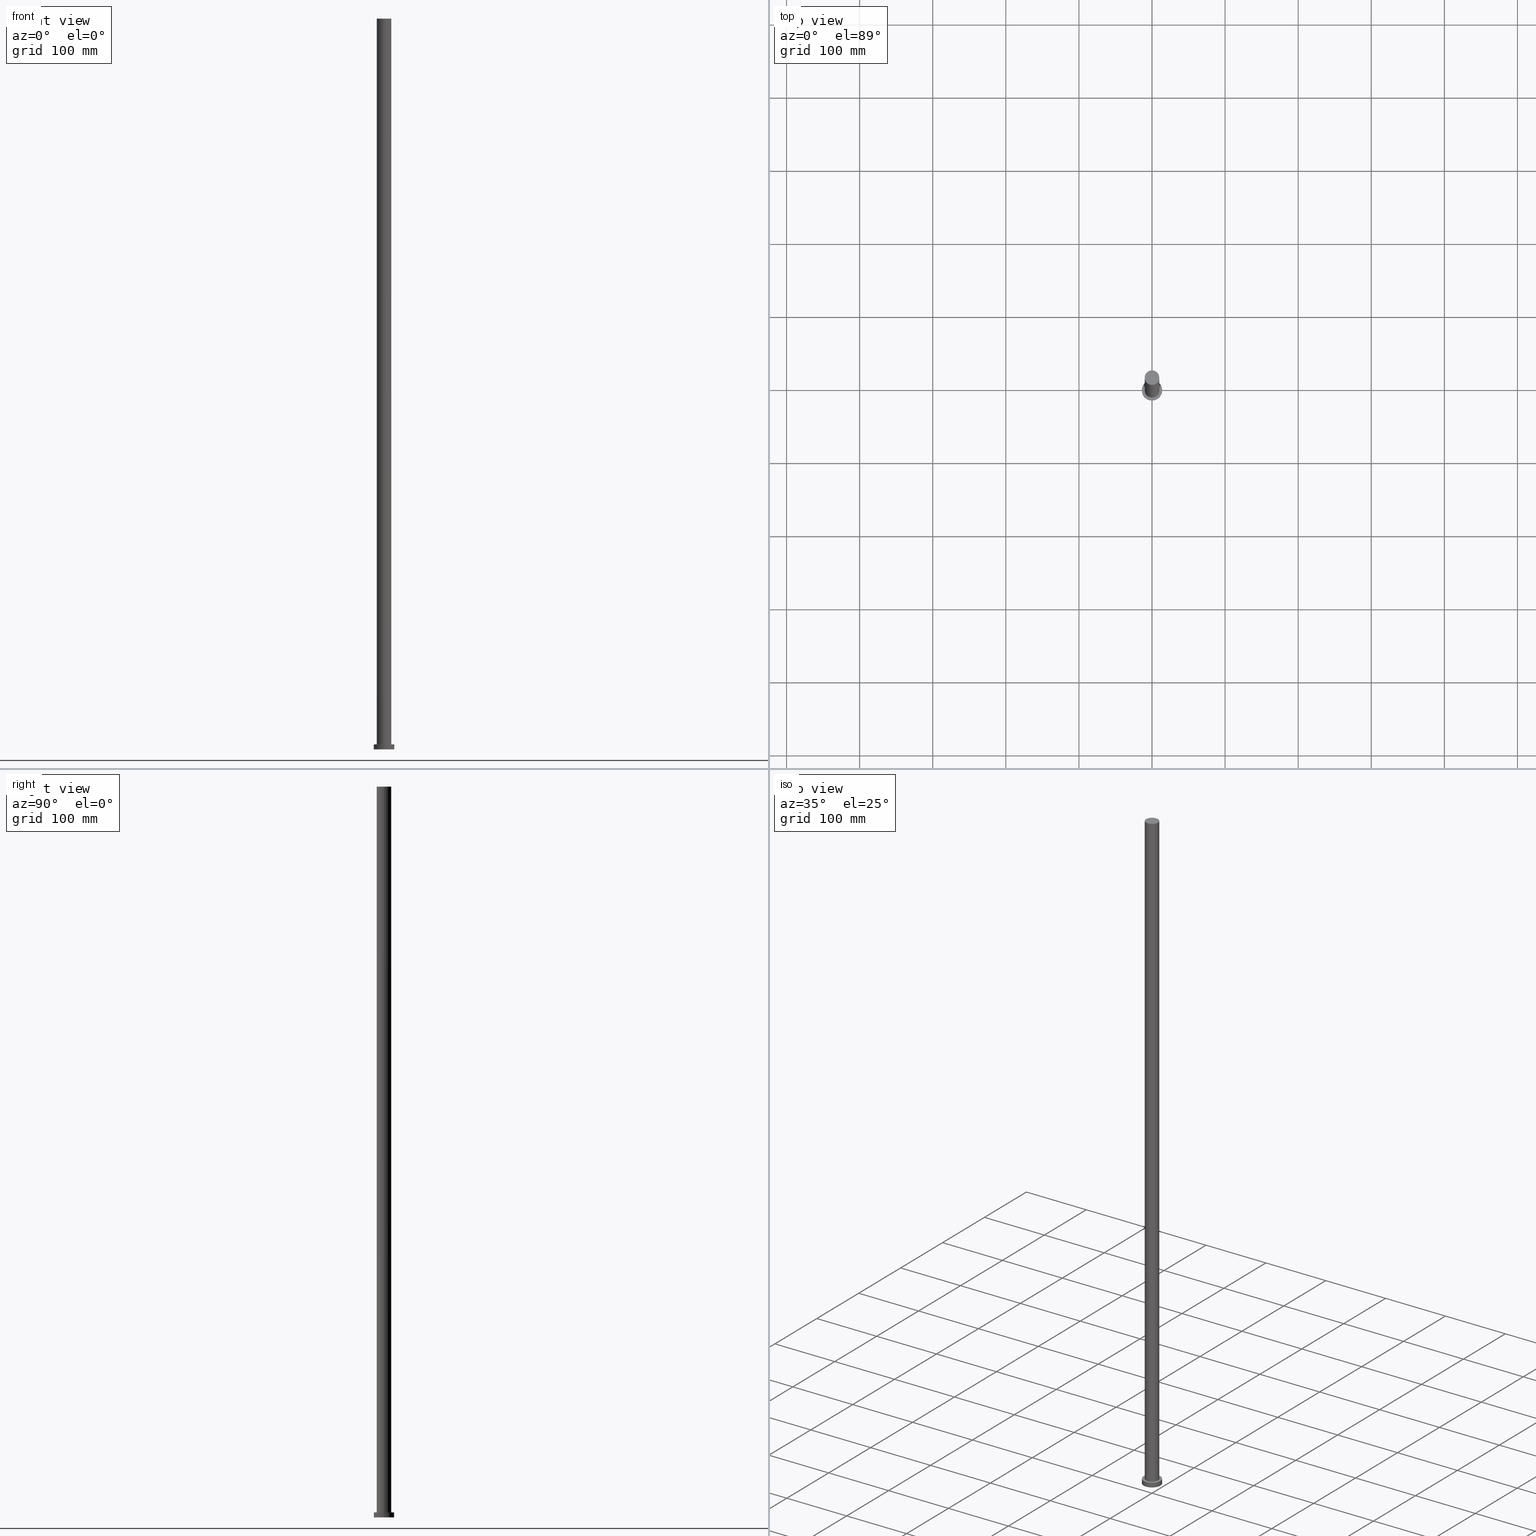
[diagram: canonical four-view strip — front | top / right | iso, engineering-drawing reading convention]
A machine part, canonical four-view strip (front | top / right | iso — engineering-drawing reading convention). The complete STEP part file that produces these views, byte-faithful:
ISO-10303-21;
HEADER;
FILE_DESCRIPTION (( 'STEP AP203' ),
    '1' );
FILE_NAME ('a72d.STEP',
    '2023-02-13T08:39:55',
    ( '' ),
    ( '' ),
    'SwSTEP 2.0',
    'SolidWorks 2019',
    '' );
FILE_SCHEMA (( 'CONFIG_CONTROL_DESIGN' ));
ENDSEC;

DATA;
#1 = APPLICATION_CONTEXT ( 'configuration controlled 3d designs of mechanical parts and assemblies' ) ;
#2 = EDGE_CURVE ( 'NONE', #137, #162, #192, .T. ) ;
#3 = APPLICATION_PROTOCOL_DEFINITION ( 'international standard', 'config_control_design', 1994, #1 ) ;
#4 = AXIS2_PLACEMENT_3D ( 'NONE', #59, #213, #6 ) ;
#5 = EDGE_LOOP ( 'NONE', ( #97, #98, #62, #237 ) ) ;
#6 = DIRECTION ( 'NONE',  ( 1.000000000000000000, 0.000000000000000000, 0.000000000000000000 ) ) ;
#7 = EDGE_LOOP ( 'NONE', ( #80, #56, #40, #43 ) ) ;
#8 = APPROVAL_ROLE ( '' ) ;
#9 = DIRECTION ( 'NONE',  ( -1.000000000000000000, 0.000000000000000000, 0.000000000000000000 ) ) ;
#10 = CARTESIAN_POINT ( 'NONE',  ( 14.00000000000000000, 1.714505518806294638E-15, 0.000000000000000000 ) ) ;
#11 = ORIENTED_EDGE ( 'NONE', *, *, #250, .F. ) ;
#12 = DATE_TIME_ROLE ( 'classification_date' ) ;
#13 = LINE ( 'NONE', #90, #158 ) ;
#14 = CARTESIAN_POINT ( 'NONE',  ( 0.000000000000000000, 0.000000000000000000, 1000.000000000000000 ) ) ;
#15 = APPROVAL ( #26, 'NEUR�EN�' ) ;
#16 = ADVANCED_FACE ( 'NONE', ( #102 ), #145, .F. ) ;
#17 = FACE_BOUND ( 'NONE', #214, .T. ) ;
#18 = AXIS2_PLACEMENT_3D ( 'NONE', #219, #220, #169 ) ;
#19 = APPROVAL ( #179, 'NEUR�EN�' ) ;
#20 = PLANE ( 'NONE',  #186 ) ;
#21 = DIRECTION ( 'NONE',  ( 1.000000000000000000, 0.000000000000000000, 0.000000000000000000 ) ) ;
#22 = APPROVAL_DATE_TIME ( #133, #240 ) ;
#23 = AXIS2_PLACEMENT_3D ( 'NONE', #252, #157, #230 ) ;
#24 = EDGE_LOOP ( 'NONE', ( #42, #142, #149, #64 ) ) ;
#25 = CC_DESIGN_DATE_AND_TIME_ASSIGNMENT ( #61, #84, ( #57 ) ) ;
#26 = APPROVAL_STATUS ( 'not_yet_approved' ) ;
#27 = ORIENTED_EDGE ( 'NONE', *, *, #253, .T. ) ;
#28 = PERSON_AND_ORGANIZATION ( #71, #88 ) ;
#29 = DIRECTION ( 'NONE',  ( 0.000000000000000000, 0.000000000000000000, 1.000000000000000000 ) ) ;
#30 = ADVANCED_FACE ( 'NONE', ( #32 ), #228, .T. ) ;
#31 = PLANE ( 'NONE',  #83 ) ;
#32 = FACE_OUTER_BOUND ( 'NONE', #24, .T. ) ;
#33 = CARTESIAN_POINT ( 'NONE',  ( 0.000000000000000000, 0.000000000000000000, 7.000000000000000000 ) ) ;
#34 = CARTESIAN_POINT ( 'NONE',  ( 0.000000000000000000, 0.000000000000000000, 1000.000000000000000 ) ) ;
#35 = EDGE_CURVE ( 'NONE', #178, #163, #92, .T. ) ;
#36 = FACE_OUTER_BOUND ( 'NONE', #202, .T. ) ;
#37 = EDGE_CURVE ( 'NONE', #178, #136, #13, .T. ) ;
#38 = FACE_OUTER_BOUND ( 'NONE', #7, .T. ) ;
#39 = SECURITY_CLASSIFICATION_LEVEL ( 'unclassified' ) ;
#40 = ORIENTED_EDGE ( 'NONE', *, *, #168, .T. ) ;
#41 = MECHANICAL_CONTEXT ( 'NONE', #204, 'mechanical' ) ;
#42 = ORIENTED_EDGE ( 'NONE', *, *, #35, .F. ) ;
#43 = ORIENTED_EDGE ( 'NONE', *, *, #140, .T. ) ;
#44 = SHAPE_DEFINITION_REPRESENTATION ( #210, #232 ) ;
#45 = DIRECTION ( 'NONE',  ( -0.000000000000000000, -0.000000000000000000, -1.000000000000000000 ) ) ;
#46 = DIRECTION ( 'NONE',  ( 0.000000000000000000, 0.000000000000000000, 1.000000000000000000 ) ) ;
#47 = ADVANCED_FACE ( 'NONE', ( #129 ), #223, .T. ) ;
#48 = DIRECTION ( 'NONE',  ( 1.000000000000000000, 0.000000000000000000, -0.000000000000000000 ) ) ;
#49 = DIRECTION ( 'NONE',  ( -1.000000000000000000, 0.000000000000000000, 0.000000000000000000 ) ) ;
#50 = DIRECTION ( 'NONE',  ( 0.000000000000000000, 0.000000000000000000, 1.000000000000000000 ) ) ;
#51 = EDGE_CURVE ( 'NONE', #163, #178, #185, .T. ) ;
#52 = CIRCLE ( 'NONE', #99, 10.00000000000000000 ) ;
#53 = PERSON_AND_ORGANIZATION ( #71, #88 ) ;
#54 = CARTESIAN_POINT ( 'NONE',  ( 0.000000000000000000, 0.000000000000000000, 7.000000000000000000 ) ) ;
#55 = CALENDAR_DATE ( 2023, 13, 2 ) ;
#56 = ORIENTED_EDGE ( 'NONE', *, *, #75, .F. ) ;
#57 = PRODUCT_DEFINITION ( 'NEZN�M�', '', #126, #148 ) ;
#58 = VERTEX_POINT ( 'NONE', #207 ) ;
#59 = CARTESIAN_POINT ( 'NONE',  ( 0.000000000000000000, 0.000000000000000000, 0.000000000000000000 ) ) ;
#60 = ORIENTED_EDGE ( 'NONE', *, *, #35, .T. ) ;
#61 = DATE_AND_TIME ( #55, #172 ) ;
#62 = ORIENTED_EDGE ( 'NONE', *, *, #2, .T. ) ;
#63 = CALENDAR_DATE ( 2023, 13, 2 ) ;
#64 = ORIENTED_EDGE ( 'NONE', *, *, #123, .F. ) ;
#65 = APPROVAL_PERSON_ORGANIZATION ( #28, #19, #8 ) ;
#66 = CALENDAR_DATE ( 2023, 13, 2 ) ;
#67 = DIRECTION ( 'NONE',  ( -0.000000000000000000, -0.000000000000000000, -1.000000000000000000 ) ) ;
#68 = DIRECTION ( 'NONE',  ( -0.000000000000000000, -0.000000000000000000, -1.000000000000000000 ) ) ;
#69 = CC_DESIGN_PERSON_AND_ORGANIZATION_ASSIGNMENT ( #119, #254, ( #57 ) ) ;
#70 = DIRECTION ( 'NONE',  ( -1.000000000000000000, 0.000000000000000000, 0.000000000000000000 ) ) ;
#71 = PERSON ( 'NEUR�EN�', 'NEUR�EN�', 'NEUR�EN�', ('NEUR�EN�'), ('NEUR�EN�'), ('NEUR�EN�') ) ;
#72 = LOCAL_TIME ( 9, 39, 55.00000000000000000, #91 ) ;
#73 = CARTESIAN_POINT ( 'NONE',  ( 0.000000000000000000, 0.000000000000000000, 1000.000000000000000 ) ) ;
#74 = CC_DESIGN_PERSON_AND_ORGANIZATION_ASSIGNMENT ( #195, #235, ( #138 ) ) ;
#75 = EDGE_CURVE ( 'NONE', #118, #58, #81, .T. ) ;
#76 = AXIS2_PLACEMENT_3D ( 'NONE', #183, #68, #49 ) ;
#77 = DIRECTION ( 'NONE',  ( -0.000000000000000000, -0.000000000000000000, -1.000000000000000000 ) ) ;
#78 = PERSON_AND_ORGANIZATION ( #71, #88 ) ;
#79 = VERTEX_POINT ( 'NONE', #184 ) ;
#80 = ORIENTED_EDGE ( 'NONE', *, *, #94, .F. ) ;
#81 = CIRCLE ( 'NONE', #221, 10.00000000000000000 ) ;
#82 = AXIS2_PLACEMENT_3D ( 'NONE', #89, #124, #70 ) ;
#83 = AXIS2_PLACEMENT_3D ( 'NONE', #73, #87, #147 ) ;
#84 = DATE_TIME_ROLE ( 'creation_date' ) ;
#85 = EDGE_LOOP ( 'NONE', ( #121, #247, #122, #117 ) ) ;
#86 = COORDINATED_UNIVERSAL_TIME_OFFSET ( 1, 0, .AHEAD. ) ;
#87 = DIRECTION ( 'NONE',  ( 0.000000000000000000, 0.000000000000000000, 1.000000000000000000 ) ) ;
#88 = ORGANIZATION ( 'NEUR�EN�', 'NEUR�EN�', '' ) ;
#89 = CARTESIAN_POINT ( 'NONE',  ( 0.000000000000000000, 0.000000000000000000, 1000.000000000000000 ) ) ;
#90 = CARTESIAN_POINT ( 'NONE',  ( 14.00000000000000000, 1.714505518806294638E-15, 7.000000000000000000 ) ) ;
#91 = COORDINATED_UNIVERSAL_TIME_OFFSET ( 1, 0, .AHEAD. ) ;
#92 = CIRCLE ( 'NONE', #18, 14.00000000000000000 ) ;
#93 = CARTESIAN_POINT ( 'NONE',  ( 0.000000000000000000, 0.000000000000000000, 7.000000000000000000 ) ) ;
#94 = EDGE_CURVE ( 'NONE', #58, #137, #128, .T. ) ;
#95 = DIRECTION ( 'NONE',  ( -0.000000000000000000, -0.000000000000000000, -1.000000000000000000 ) ) ;
#96 = PERSON_AND_ORGANIZATION_ROLE ( 'design_supplier' ) ;
#97 = ORIENTED_EDGE ( 'NONE', *, *, #253, .F. ) ;
#98 = ORIENTED_EDGE ( 'NONE', *, *, #94, .T. ) ;
#99 = AXIS2_PLACEMENT_3D ( 'NONE', #189, #50, #21 ) ;
#100 = APPROVAL_ROLE ( '' ) ;
#101 = CC_DESIGN_PERSON_AND_ORGANIZATION_ASSIGNMENT ( #78, #174, ( #227 ) ) ;
#102 = FACE_OUTER_BOUND ( 'NONE', #201, .T. ) ;
#103 = ADVANCED_FACE ( 'NONE', ( #246 ), #31, .T. ) ;
#104 = VECTOR ( 'NONE', #205, 1000.000000000000000 ) ;
#105 = DATE_AND_TIME ( #66, #160 ) ;
#106 = CARTESIAN_POINT ( 'NONE',  ( -10.00000000000000000, 0.000000000000000000, 1000.000000000000000 ) ) ;
#107 = DIRECTION ( 'NONE',  ( -0.000000000000000000, -0.000000000000000000, -1.000000000000000000 ) ) ;
#108 = CC_DESIGN_APPROVAL ( #19, ( #138 ) ) ;
#109 = CARTESIAN_POINT ( 'NONE',  ( -10.00000000000000000, 0.000000000000000000, 7.000000000000000000 ) ) ;
#110 = CARTESIAN_POINT ( 'NONE',  ( 0.000000000000000000, 0.000000000000000000, 0.000000000000000000 ) ) ;
#111 = AXIS2_PLACEMENT_3D ( 'NONE', #93, #190, #112 ) ;
#112 = DIRECTION ( 'NONE',  ( 1.000000000000000000, 0.000000000000000000, 0.000000000000000000 ) ) ;
#113 = APPROVAL_PERSON_ORGANIZATION ( #198, #240, #141 ) ;
#114 = CYLINDRICAL_SURFACE ( 'NONE', #175, 10.00000000000000000 ) ;
#115 = PERSON_AND_ORGANIZATION ( #71, #88 ) ;
#116 = AXIS2_PLACEMENT_3D ( 'NONE', #170, #46, #245 ) ;
#117 = ORIENTED_EDGE ( 'NONE', *, *, #250, .T. ) ;
#118 = VERTEX_POINT ( 'NONE', #106 ) ;
#119 = PERSON_AND_ORGANIZATION ( #71, #88 ) ;
#120 = ADVANCED_FACE ( 'NONE', ( #206 ), #226, .T. ) ;
#121 = ORIENTED_EDGE ( 'NONE', *, *, #37, .F. ) ;
#122 = ORIENTED_EDGE ( 'NONE', *, *, #123, .T. ) ;
#123 = EDGE_CURVE ( 'NONE', #163, #79, #164, .T. ) ;
#124 = DIRECTION ( 'NONE',  ( -0.000000000000000000, -0.000000000000000000, -1.000000000000000000 ) ) ;
#125 = CARTESIAN_POINT ( 'NONE',  ( 10.00000000000000000, 1.224646799147353256E-15, 1000.000000000000000 ) ) ;
#126 = PRODUCT_DEFINITION_FORMATION_WITH_SPECIFIED_SOURCE ( 'LIBOVOLN�', '', #227, .NOT_KNOWN. ) ;
#127 = CARTESIAN_POINT ( 'NONE',  ( 0.000000000000000000, 0.000000000000000000, 0.000000000000000000 ) ) ;
#128 = LINE ( 'NONE', #125, #104 ) ;
#129 = FACE_OUTER_BOUND ( 'NONE', #5, .T. ) ;
#130 = CIRCLE ( 'NONE', #23, 14.00000000000000000 ) ;
#131 = CARTESIAN_POINT ( 'NONE',  ( -10.00000000000000000, 0.000000000000000000, 1000.000000000000000 ) ) ;
#132 = CARTESIAN_POINT ( 'NONE',  ( 14.00000000000000000, 1.714505518806294638E-15, 7.000000000000000000 ) ) ;
#133 = DATE_AND_TIME ( #212, #225 ) ;
#134 =( LENGTH_UNIT ( ) NAMED_UNIT ( * ) SI_UNIT ( .MILLI., .METRE. ) );
#135 = COORDINATED_UNIVERSAL_TIME_OFFSET ( 1, 0, .AHEAD. ) ;
#136 = VERTEX_POINT ( 'NONE', #10 ) ;
#137 = VERTEX_POINT ( 'NONE', #248 ) ;
#138 = SECURITY_CLASSIFICATION ( '', '', #39 ) ;
#139 = APPROVAL_DATE_TIME ( #143, #15 ) ;
#140 = EDGE_CURVE ( 'NONE', #162, #137, #224, .T. ) ;
#141 = APPROVAL_ROLE ( '' ) ;
#142 = ORIENTED_EDGE ( 'NONE', *, *, #37, .T. ) ;
#143 = DATE_AND_TIME ( #236, #229 ) ;
#144 = ORIENTED_EDGE ( 'NONE', *, *, #75, .T. ) ;
#145 = PLANE ( 'NONE',  #150 ) ;
#146 = APPROVAL_PERSON_ORGANIZATION ( #159, #15, #100 ) ;
#147 = DIRECTION ( 'NONE',  ( 1.000000000000000000, 0.000000000000000000, -0.000000000000000000 ) ) ;
#148 = DESIGN_CONTEXT ( 'detailed design', #1, 'design' ) ;
#149 = ORIENTED_EDGE ( 'NONE', *, *, #238, .T. ) ;
#150 = AXIS2_PLACEMENT_3D ( 'NONE', #127, #167, #48 ) ;
#151 = ADVANCED_FACE ( 'NONE', ( #38 ), #114, .T. ) ;
#152 = MANIFOLD_SOLID_BREP ( 'P�idat vysunut�m3', #234 ) ;
#153 = DIRECTION ( 'NONE',  ( 0.000000000000000000, 0.000000000000000000, 1.000000000000000000 ) ) ;
#154 = UNCERTAINTY_MEASURE_WITH_UNIT (LENGTH_MEASURE( 1.000000000000000082E-05 ), #134, 'distance_accuracy_value', 'NONE');
#155 = PERSON_AND_ORGANIZATION_ROLE ( 'creator' ) ;
#156 = AXIS2_PLACEMENT_3D ( 'NONE', #33, #107, #9 ) ;
#157 = DIRECTION ( 'NONE',  ( 0.000000000000000000, 0.000000000000000000, 1.000000000000000000 ) ) ;
#158 = VECTOR ( 'NONE', #45, 1000.000000000000000 ) ;
#159 = PERSON_AND_ORGANIZATION ( #71, #88 ) ;
#160 = LOCAL_TIME ( 9, 39, 55.00000000000000000, #86 ) ;
#161 = APPROVAL_STATUS ( 'not_yet_approved' ) ;
#162 = VERTEX_POINT ( 'NONE', #109 ) ;
#163 = VERTEX_POINT ( 'NONE', #193 ) ;
#164 = LINE ( 'NONE', #243, #200 ) ;
#165 = PRODUCT_RELATED_PRODUCT_CATEGORY ( 'detail', '', ( #227 ) ) ;
#166 = ADVANCED_FACE ( 'NONE', ( #17, #36 ), #20, .T. ) ;
#167 = DIRECTION ( 'NONE',  ( 0.000000000000000000, 0.000000000000000000, 1.000000000000000000 ) ) ;
#168 = EDGE_CURVE ( 'NONE', #118, #162, #173, .T. ) ;
#169 = DIRECTION ( 'NONE',  ( 1.000000000000000000, 0.000000000000000000, 0.000000000000000000 ) ) ;
#170 = CARTESIAN_POINT ( 'NONE',  ( 0.000000000000000000, 0.000000000000000000, 7.000000000000000000 ) ) ;
#171 =( NAMED_UNIT ( * ) PLANE_ANGLE_UNIT ( ) SI_UNIT ( $, .RADIAN. ) );
#172 = LOCAL_TIME ( 9, 39, 55.00000000000000000, #216 ) ;
#173 = LINE ( 'NONE', #131, #208 ) ;
#174 = PERSON_AND_ORGANIZATION_ROLE ( 'design_owner' ) ;
#175 = AXIS2_PLACEMENT_3D ( 'NONE', #14, #77, #188 ) ;
#176 = CC_DESIGN_APPROVAL ( #240, ( #126 ) ) ;
#177 = COORDINATED_UNIVERSAL_TIME_OFFSET ( 1, 0, .AHEAD. ) ;
#178 = VERTEX_POINT ( 'NONE', #132 ) ;
#179 = APPROVAL_STATUS ( 'not_yet_approved' ) ;
#180 = DIRECTION ( 'NONE',  ( 1.000000000000000000, 0.000000000000000000, 0.000000000000000000 ) ) ;
#181 = DIRECTION ( 'NONE',  ( 0.000000000000000000, 0.000000000000000000, 1.000000000000000000 ) ) ;
#182 = CC_DESIGN_PERSON_AND_ORGANIZATION_ASSIGNMENT ( #115, #155, ( #126 ) ) ;
#183 = CARTESIAN_POINT ( 'NONE',  ( 0.000000000000000000, 0.000000000000000000, 7.000000000000000000 ) ) ;
#184 = CARTESIAN_POINT ( 'NONE',  ( -14.00000000000000000, 0.000000000000000000, 0.000000000000000000 ) ) ;
#185 = CIRCLE ( 'NONE', #222, 14.00000000000000000 ) ;
#186 = AXIS2_PLACEMENT_3D ( 'NONE', #54, #194, #231 ) ;
#187 = CC_DESIGN_SECURITY_CLASSIFICATION ( #138, ( #126 ) ) ;
#188 = DIRECTION ( 'NONE',  ( -1.000000000000000000, 0.000000000000000000, 0.000000000000000000 ) ) ;
#189 = CARTESIAN_POINT ( 'NONE',  ( 0.000000000000000000, 0.000000000000000000, 1000.000000000000000 ) ) ;
#190 = DIRECTION ( 'NONE',  ( 0.000000000000000000, 0.000000000000000000, 1.000000000000000000 ) ) ;
#191 = CC_DESIGN_PERSON_AND_ORGANIZATION_ASSIGNMENT ( #53, #96, ( #126 ) ) ;
#192 = CIRCLE ( 'NONE', #116, 10.00000000000000000 ) ;
#193 = CARTESIAN_POINT ( 'NONE',  ( -14.00000000000000000, 0.000000000000000000, 7.000000000000000000 ) ) ;
#194 = DIRECTION ( 'NONE',  ( 0.000000000000000000, 0.000000000000000000, 1.000000000000000000 ) ) ;
#195 = PERSON_AND_ORGANIZATION ( #71, #88 ) ;
#196 = APPLICATION_PROTOCOL_DEFINITION ( 'international standard', 'config_control_design', 1994, #204 ) ;
#197 = AXIS2_PLACEMENT_3D ( 'NONE', #110, #153, #233 ) ;
#198 = PERSON_AND_ORGANIZATION ( #71, #88 ) ;
#199 = ORIENTED_EDGE ( 'NONE', *, *, #140, .F. ) ;
#200 = VECTOR ( 'NONE', #67, 1000.000000000000000 ) ;
#201 = EDGE_LOOP ( 'NONE', ( #11, #239 ) ) ;
#202 = EDGE_LOOP ( 'NONE', ( #215, #60 ) ) ;
#203 = CARTESIAN_POINT ( 'NONE',  ( 0.000000000000000000, 0.000000000000000000, 7.000000000000000000 ) ) ;
#204 = APPLICATION_CONTEXT ( 'configuration controlled 3d designs of mechanical parts and assemblies' ) ;
#205 = DIRECTION ( 'NONE',  ( -0.000000000000000000, -0.000000000000000000, -1.000000000000000000 ) ) ;
#206 = FACE_OUTER_BOUND ( 'NONE', #85, .T. ) ;
#207 = CARTESIAN_POINT ( 'NONE',  ( 10.00000000000000000, 1.224646799147353256E-15, 1000.000000000000000 ) ) ;
#208 = VECTOR ( 'NONE', #95, 1000.000000000000000 ) ;
#209 = CC_DESIGN_DATE_AND_TIME_ASSIGNMENT ( #242, #12, ( #138 ) ) ;
#210 = PRODUCT_DEFINITION_SHAPE ( 'NONE', 'NONE',  #57 ) ;
#211 =( NAMED_UNIT ( * ) SI_UNIT ( $, .STERADIAN. ) SOLID_ANGLE_UNIT ( ) );
#212 = CALENDAR_DATE ( 2023, 13, 2 ) ;
#213 = DIRECTION ( 'NONE',  ( 0.000000000000000000, 0.000000000000000000, 1.000000000000000000 ) ) ;
#214 = EDGE_LOOP ( 'NONE', ( #199, #255 ) ) ;
#215 = ORIENTED_EDGE ( 'NONE', *, *, #51, .T. ) ;
#216 = COORDINATED_UNIVERSAL_TIME_OFFSET ( 1, 0, .AHEAD. ) ;
#217 = CC_DESIGN_APPROVAL ( #15, ( #57 ) ) ;
#218 = APPROVAL_DATE_TIME ( #105, #19 ) ;
#219 = CARTESIAN_POINT ( 'NONE',  ( 0.000000000000000000, 0.000000000000000000, 7.000000000000000000 ) ) ;
#220 = DIRECTION ( 'NONE',  ( 0.000000000000000000, 0.000000000000000000, 1.000000000000000000 ) ) ;
#221 = AXIS2_PLACEMENT_3D ( 'NONE', #34, #181, #180 ) ;
#222 = AXIS2_PLACEMENT_3D ( 'NONE', #203, #29, #244 ) ;
#223 = CYLINDRICAL_SURFACE ( 'NONE', #82, 10.00000000000000000 ) ;
#224 = CIRCLE ( 'NONE', #111, 10.00000000000000000 ) ;
#225 = LOCAL_TIME ( 9, 39, 55.00000000000000000, #135 ) ;
#226 = CYLINDRICAL_SURFACE ( 'NONE', #156, 14.00000000000000000 ) ;
#227 = PRODUCT ( 'a72d', 'a72d', '', ( #41 ) ) ;
#228 = CYLINDRICAL_SURFACE ( 'NONE', #76, 14.00000000000000000 ) ;
#229 = LOCAL_TIME ( 9, 39, 55.00000000000000000, #177 ) ;
#230 = DIRECTION ( 'NONE',  ( 1.000000000000000000, 0.000000000000000000, 0.000000000000000000 ) ) ;
#231 = DIRECTION ( 'NONE',  ( 1.000000000000000000, 0.000000000000000000, -0.000000000000000000 ) ) ;
#232 = ADVANCED_BREP_SHAPE_REPRESENTATION ( 'a72d', ( #152, #4 ), #251 ) ;
#233 = DIRECTION ( 'NONE',  ( 1.000000000000000000, 0.000000000000000000, 0.000000000000000000 ) ) ;
#234 = CLOSED_SHELL ( 'NONE', ( #47, #30, #120, #166, #16, #151, #103 ) ) ;
#235 = PERSON_AND_ORGANIZATION_ROLE ( 'classification_officer' ) ;
#236 = CALENDAR_DATE ( 2023, 13, 2 ) ;
#237 = ORIENTED_EDGE ( 'NONE', *, *, #168, .F. ) ;
#238 = EDGE_CURVE ( 'NONE', #136, #79, #130, .T. ) ;
#239 = ORIENTED_EDGE ( 'NONE', *, *, #238, .F. ) ;
#240 = APPROVAL ( #161, 'NEUR�EN�' ) ;
#241 = EDGE_LOOP ( 'NONE', ( #144, #27 ) ) ;
#242 = DATE_AND_TIME ( #63, #72 ) ;
#243 = CARTESIAN_POINT ( 'NONE',  ( -14.00000000000000000, 0.000000000000000000, 7.000000000000000000 ) ) ;
#244 = DIRECTION ( 'NONE',  ( 1.000000000000000000, 0.000000000000000000, 0.000000000000000000 ) ) ;
#245 = DIRECTION ( 'NONE',  ( 1.000000000000000000, 0.000000000000000000, 0.000000000000000000 ) ) ;
#246 = FACE_OUTER_BOUND ( 'NONE', #241, .T. ) ;
#247 = ORIENTED_EDGE ( 'NONE', *, *, #51, .F. ) ;
#248 = CARTESIAN_POINT ( 'NONE',  ( 10.00000000000000000, 1.224646799147353256E-15, 7.000000000000000000 ) ) ;
#249 = CIRCLE ( 'NONE', #197, 14.00000000000000000 ) ;
#250 = EDGE_CURVE ( 'NONE', #79, #136, #249, .T. ) ;
#251 =( GEOMETRIC_REPRESENTATION_CONTEXT ( 3 ) GLOBAL_UNCERTAINTY_ASSIGNED_CONTEXT ( ( #154 ) ) GLOBAL_UNIT_ASSIGNED_CONTEXT ( ( #134, #171, #211 ) ) REPRESENTATION_CONTEXT ( 'NONE', 'WORKASPACE' ) );
#252 = CARTESIAN_POINT ( 'NONE',  ( 0.000000000000000000, 0.000000000000000000, 0.000000000000000000 ) ) ;
#253 = EDGE_CURVE ( 'NONE', #58, #118, #52, .T. ) ;
#254 = PERSON_AND_ORGANIZATION_ROLE ( 'creator' ) ;
#255 = ORIENTED_EDGE ( 'NONE', *, *, #2, .F. ) ;
ENDSEC;
END-ISO-10303-21;
